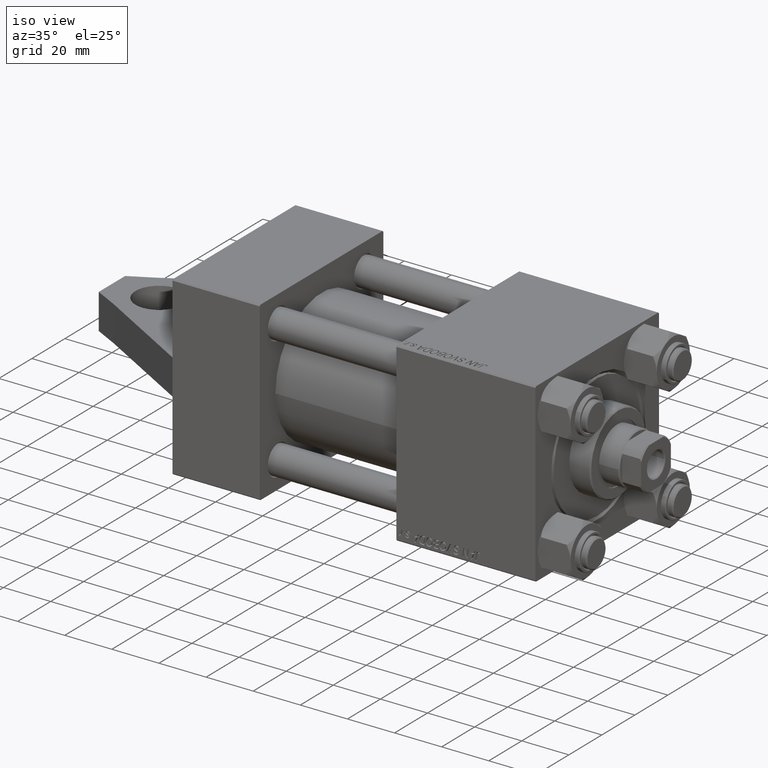
[diagram: clean part render]
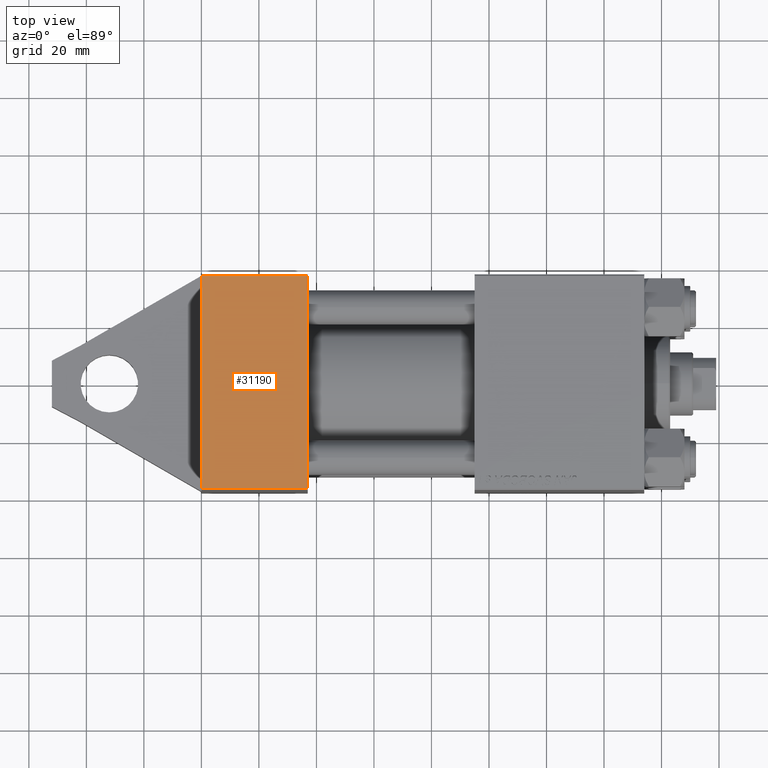
[diagram: tour spotlight — one face highlighted and labeled with its STEP entity id]
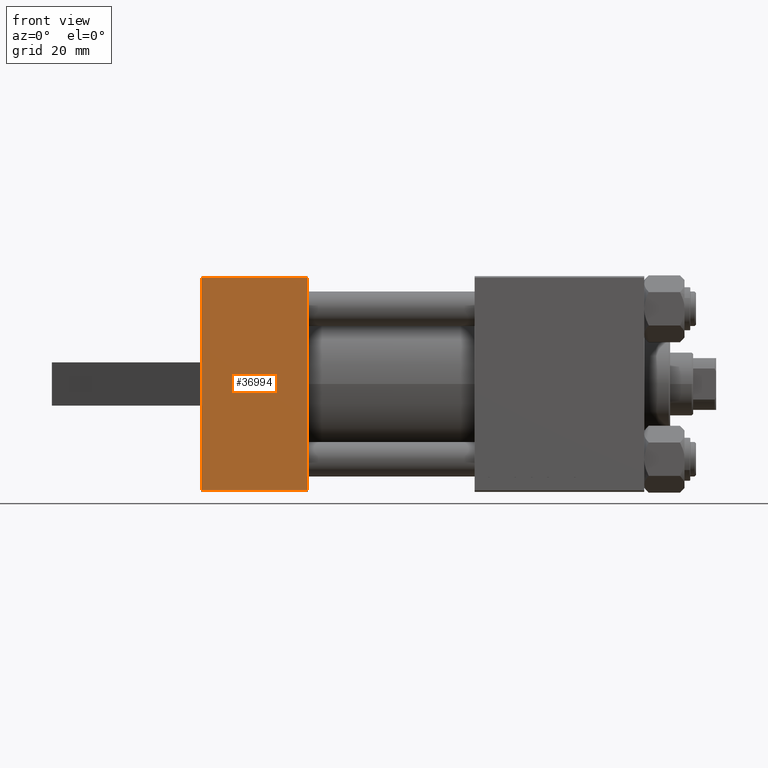
[diagram: tour spotlight — one face highlighted and labeled with its STEP entity id]
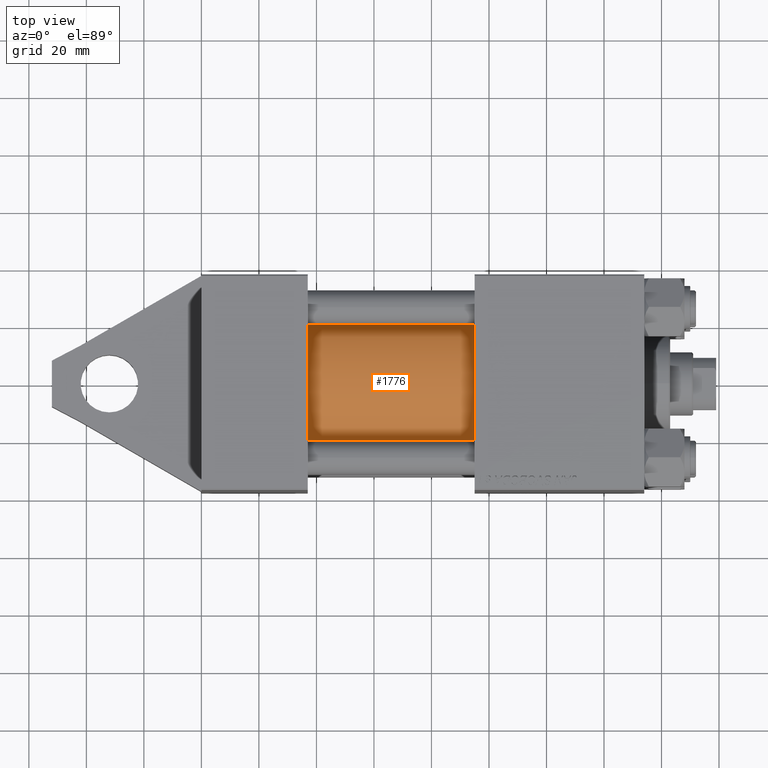
[diagram: tour spotlight — one face highlighted and labeled with its STEP entity id]
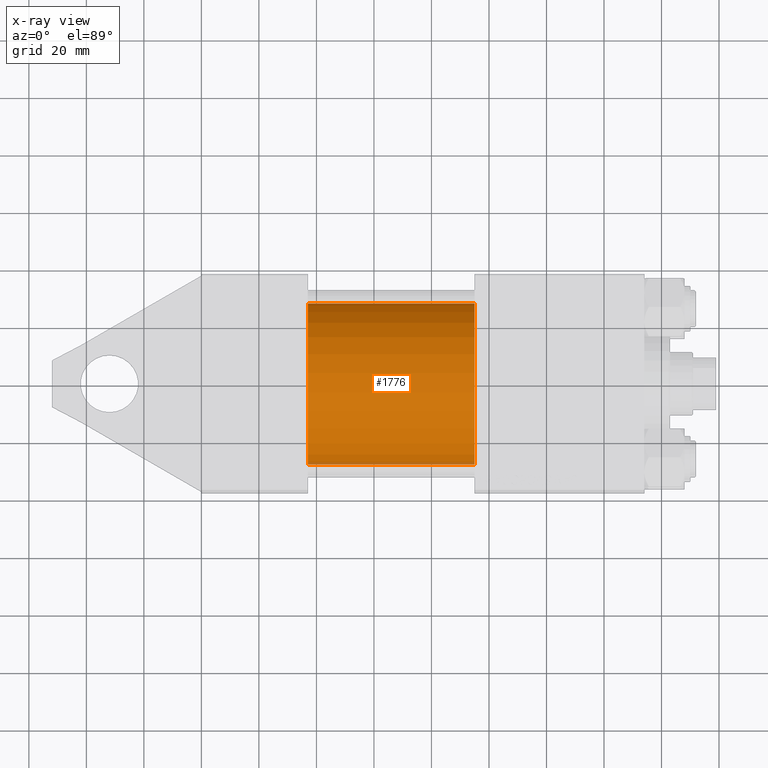
[diagram: x-ray of the same camera — body ghosted, this tour face saturated]
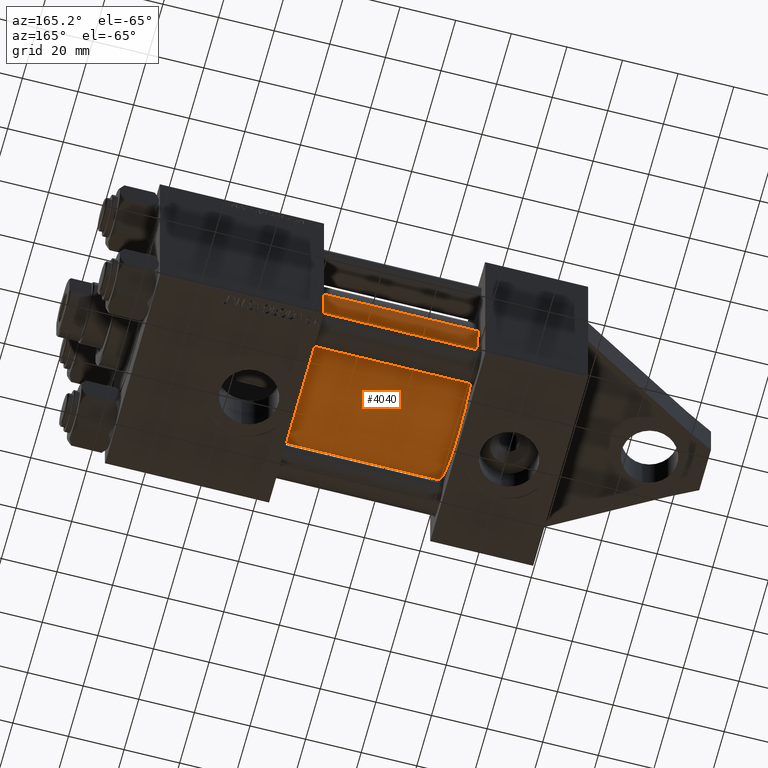
[diagram: tour spotlight — one face highlighted and labeled with its STEP entity id]
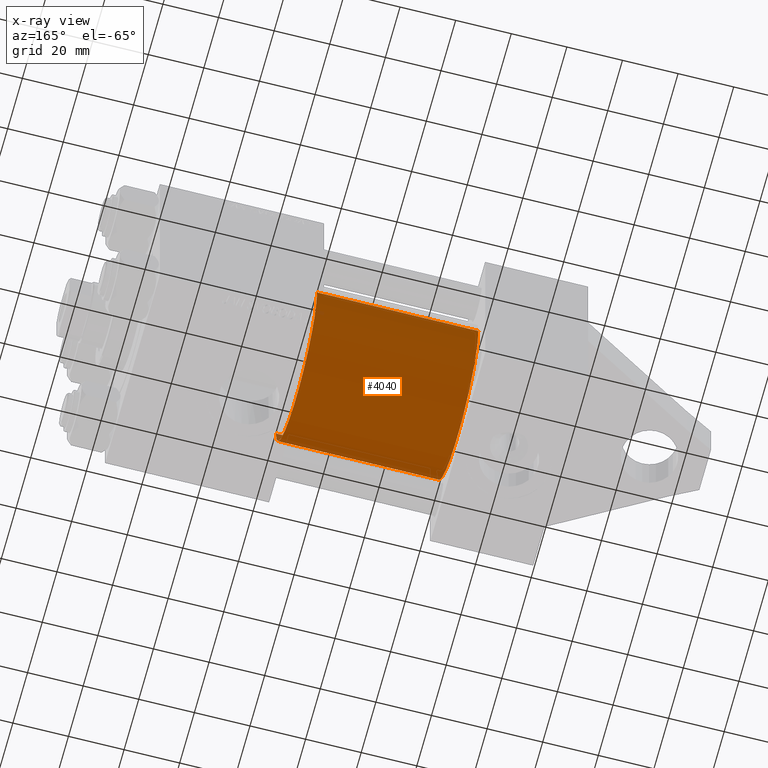
[diagram: x-ray of the same camera — body ghosted, this tour face saturated]
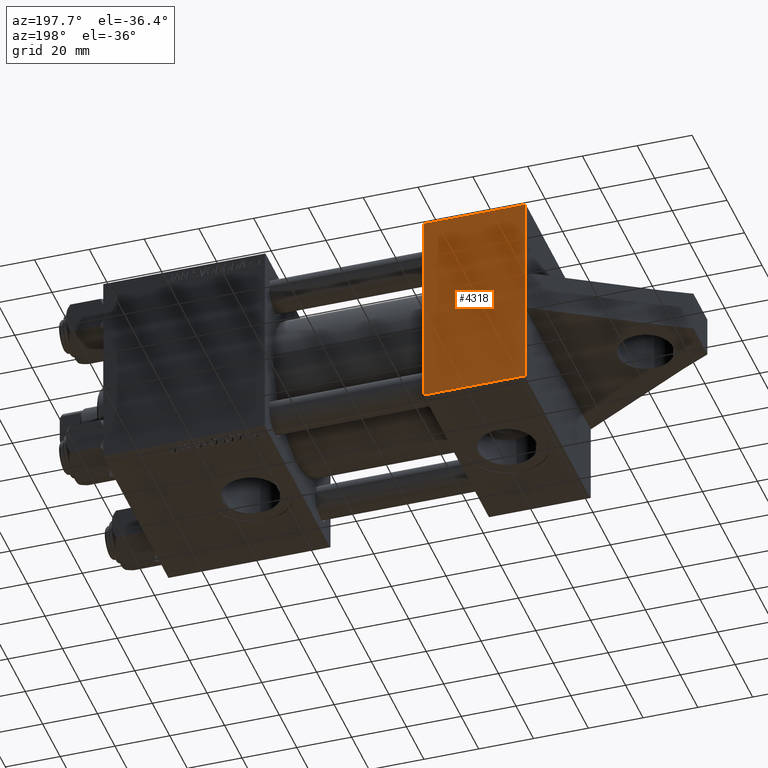
[diagram: tour spotlight — one face highlighted and labeled with its STEP entity id]
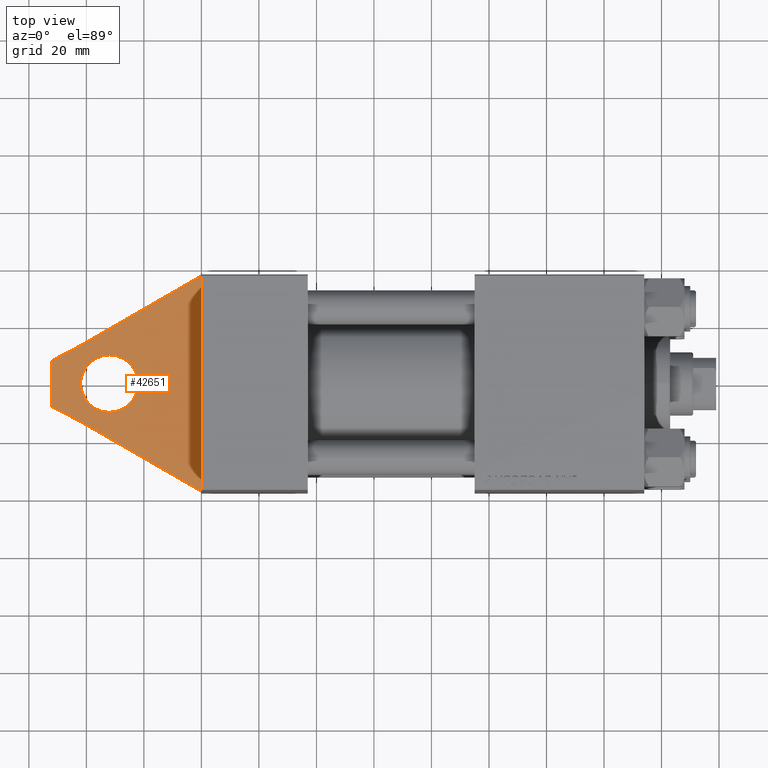
[diagram: tour spotlight — one face highlighted and labeled with its STEP entity id]
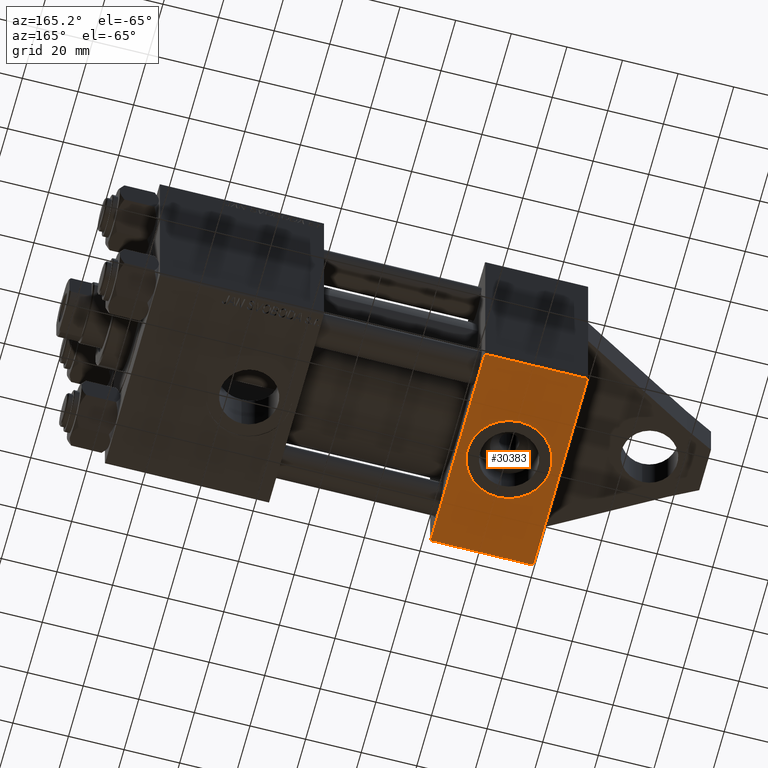
[diagram: tour spotlight — one face highlighted and labeled with its STEP entity id]
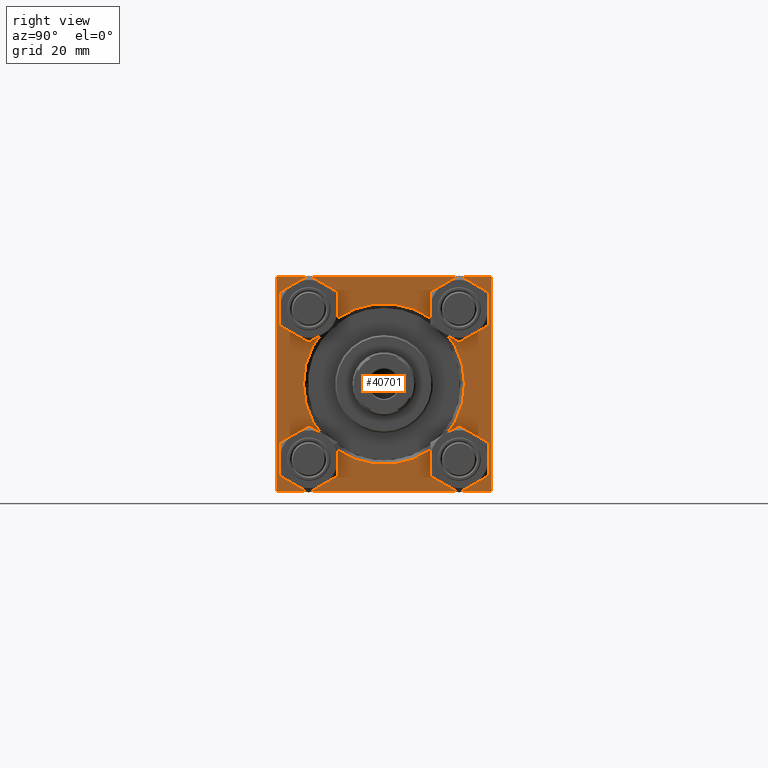
[diagram: tour spotlight — one face highlighted and labeled with its STEP entity id]
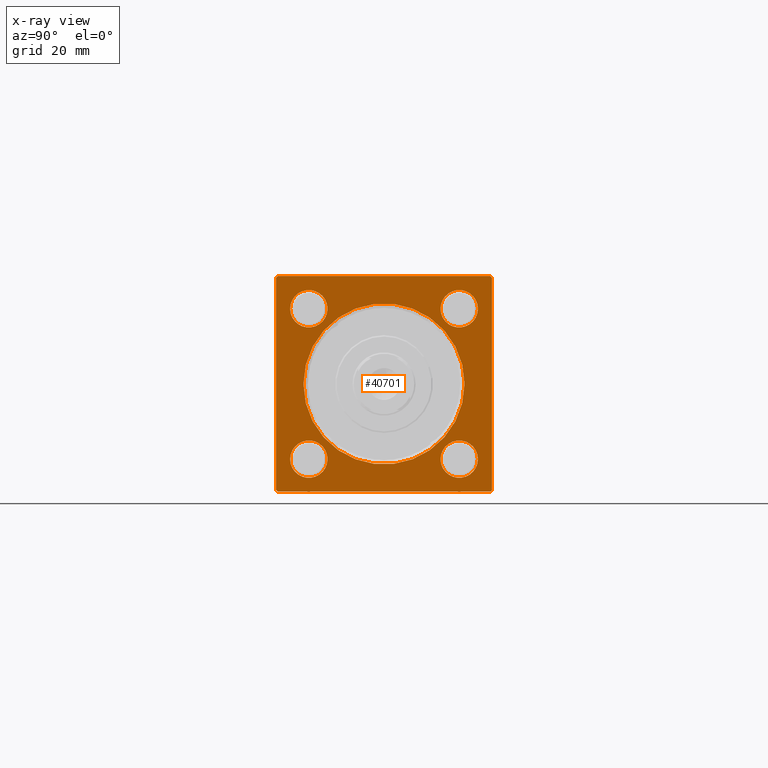
[diagram: x-ray of the same camera — body ghosted, this tour face saturated]
A machine part: a face-by-face anatomy tour. The part has 1079 B-rep faces; the first image is the clean iso view, then the 8 largest visible faces are spotlighted one at a time (largest first), each with its STEP entity span.

Face 1 — top view, entity #31190. In plain terms, the highlighted planar face has unit normal (-0, 0, 1).
Definition (entity closure, byte-faithful):
#1077 = ORIENTED_EDGE ( 'NONE', *, *, #16292, .F. ) ;
#1124 = CARTESIAN_POINT ( 'NONE',  ( 0.000000000000000000, 37.49999999999999289, 37.00000000000000000 ) ) ;
#7507 = FACE_OUTER_BOUND ( 'NONE', #40443, .T. ) ;
#8700 = CARTESIAN_POINT ( 'NONE',  ( 0.000000000000000000, 37.49999999999999289, 37.50000000000000000 ) ) ;
#10387 = DIRECTION ( 'NONE',  ( -1.000000000000000000, 0.000000000000000000, 0.000000000000000000 ) ) ;
#10771 = AXIS2_PLACEMENT_3D ( 'NONE', #25422, #14946, #11456 ) ;
#11229 = PLANE ( 'NONE',  #10771 ) ;
#11238 = VECTOR ( 'NONE', #40204, 1000.000000000000000 ) ;
#11456 = DIRECTION ( 'NONE',  ( 0.000000000000000000, -0.000000000000000000, 1.000000000000000000 ) ) ;
#11990 = CARTESIAN_POINT ( 'NONE',  ( 37.00000000000000000, 37.49999999999999289, 37.00000000000000000 ) ) ;
#13046 = ORIENTED_EDGE ( 'NONE', *, *, #33364, .T. ) ;
#13737 = EDGE_CURVE ( 'NONE', #21597, #35948, #25137, .T. ) ;
#14946 = DIRECTION ( 'NONE',  ( -0.000000000000000000, 1.000000000000000000, 0.000000000000000000 ) ) ;
#16140 = VERTEX_POINT ( 'NONE', #21284 ) ;
#16292 = EDGE_CURVE ( 'NONE', #21597, #37842, #30579, .T. ) ;
#18638 = EDGE_CURVE ( 'NONE', #35948, #16140, #44146, .T. ) ;
#21284 = CARTESIAN_POINT ( 'NONE',  ( 37.00000000000000000, 37.49999999999999289, -36.99999999999998579 ) ) ;
#21597 = VERTEX_POINT ( 'NONE', #1124 ) ;
#25137 = LINE ( 'NONE', #27936, #45276 ) ;
#25422 = CARTESIAN_POINT ( 'NONE',  ( 37.00000000000000000, 37.49999999999999289, 37.50000000000000000 ) ) ;
#26023 = CARTESIAN_POINT ( 'NONE',  ( 37.00000000000000000, 37.49999999999999289, 37.50000000000000000 ) ) ;
#27936 = CARTESIAN_POINT ( 'NONE',  ( 37.00000000000000000, 37.49999999999999289, 37.00000000000000000 ) ) ;
#29649 = ORIENTED_EDGE ( 'NONE', *, *, #18638, .T. ) ;
#30579 = LINE ( 'NONE', #8700, #39406 ) ;
#31190 = ADVANCED_FACE ( 'NONE', ( #7507 ), #11229, .T. ) ;
#33364 = EDGE_CURVE ( 'NONE', #16140, #37842, #35279, .T. ) ;
#35279 = LINE ( 'NONE', #45983, #36848 ) ;
#35839 = ORIENTED_EDGE ( 'NONE', *, *, #13737, .T. ) ;
#35841 = DIRECTION ( 'NONE',  ( 1.000000000000000000, 0.000000000000000000, 0.000000000000000000 ) ) ;
#35948 = VERTEX_POINT ( 'NONE', #11990 ) ;
#36848 = VECTOR ( 'NONE', #10387, 1000.000000000000000 ) ;
#37091 = DIRECTION ( 'NONE',  ( 0.000000000000000000, 0.000000000000000000, -1.000000000000000000 ) ) ;
#37842 = VERTEX_POINT ( 'NONE', #39962 ) ;
#39406 = VECTOR ( 'NONE', #37091, 1000.000000000000000 ) ;
#39962 = CARTESIAN_POINT ( 'NONE',  ( 0.000000000000000000, 37.49999999999999289, -36.99999999999998579 ) ) ;
#40204 = DIRECTION ( 'NONE',  ( 0.000000000000000000, 0.000000000000000000, -1.000000000000000000 ) ) ;
#40443 = EDGE_LOOP ( 'NONE', ( #29649, #13046, #1077, #35839 ) ) ;
#44146 = LINE ( 'NONE', #26023, #11238 ) ;
#45276 = VECTOR ( 'NONE', #35841, 1000.000000000000000 ) ;
#45983 = CARTESIAN_POINT ( 'NONE',  ( 37.00000000000000000, 37.49999999999999289, -36.99999999999998579 ) ) ;

Face 2 — front view, entity #36994. In plain terms, the highlighted planar face has unit normal (-0, 1, 0).
Definition (entity closure, byte-faithful):
#2776 = DIRECTION ( 'NONE',  ( 1.000000000000000000, 0.000000000000000000, 0.000000000000000000 ) ) ;
#5897 = VECTOR ( 'NONE', #2776, 1000.000000000000000 ) ;
#5996 = DIRECTION ( 'NONE',  ( -1.000000000000000000, 0.000000000000000000, 0.000000000000000000 ) ) ;
#6696 = CARTESIAN_POINT ( 'NONE',  ( 0.000000000000000000, 36.99999999999999289, 37.50000000000000000 ) ) ;
#9042 = DIRECTION ( 'NONE',  ( 0.000000000000000000, -1.000000000000000000, -9.251858538542971581E-17 ) ) ;
#9138 = EDGE_CURVE ( 'NONE', #19224, #28682, #19966, .T. ) ;
#10112 = CARTESIAN_POINT ( 'NONE',  ( 0.000000000000000000, -7.500000000000000000, 37.49999999999999289 ) ) ;
#10931 = VERTEX_POINT ( 'NONE', #14266 ) ;
#11923 = LINE ( 'NONE', #32877, #20145 ) ;
#12635 = EDGE_LOOP ( 'NONE', ( #22403, #43804, #38129, #23569, #16455, #44824 ) ) ;
#14266 = CARTESIAN_POINT ( 'NONE',  ( 0.000000000000000000, -37.00000000000000711, 37.49999999999999289 ) ) ;
#16305 = LINE ( 'NONE', #30725, #5897 ) ;
#16455 = ORIENTED_EDGE ( 'NONE', *, *, #30436, .F. ) ;
#17319 = EDGE_CURVE ( 'NONE', #28682, #37964, #11923, .T. ) ;
#17324 = DIRECTION ( 'NONE',  ( 0.000000000000000000, 1.000000000000000000, 0.000000000000000000 ) ) ;
#18930 = DIRECTION ( 'NONE',  ( 0.000000000000000000, 9.251858538542971581E-17, -1.000000000000000000 ) ) ;
#19115 = VECTOR ( 'NONE', #5996, 1000.000000000000000 ) ;
#19158 = PLANE ( 'NONE',  #26456 ) ;
#19224 = VERTEX_POINT ( 'NONE', #45186 ) ;
#19966 = LINE ( 'NONE', #34156, #19115 ) ;
#20145 = VECTOR ( 'NONE', #43105, 1000.000000000000000 ) ;
#20191 = VECTOR ( 'NONE', #17324, 1000.000000000000000 ) ;
#20658 = CARTESIAN_POINT ( 'NONE',  ( 0.000000000000000000, 37.49999999999999289, 37.50000000000000000 ) ) ;
#21519 = LINE ( 'NONE', #10112, #20191 ) ;
#22128 = EDGE_CURVE ( 'NONE', #31137, #37964, #21519, .T. ) ;
#22403 = ORIENTED_EDGE ( 'NONE', *, *, #17319, .T. ) ;
#22502 = EDGE_CURVE ( 'NONE', #31137, #10931, #23467, .T. ) ;
#22954 = VERTEX_POINT ( 'NONE', #39441 ) ;
#23114 = DIRECTION ( 'NONE',  ( 0.000000000000000000, 1.000000000000000000, 9.251858538542971581E-17 ) ) ;
#23467 = LINE ( 'NONE', #20658, #33577 ) ;
#23569 = ORIENTED_EDGE ( 'NONE', *, *, #44280, .T. ) ;
#25017 = CARTESIAN_POINT ( 'NONE',  ( 0.000000000000000000, 7.500000000000000000, 37.49999999999999289 ) ) ;
#26456 = AXIS2_PLACEMENT_3D ( 'NONE', #33353, #18930, #23114 ) ;
#28682 = VERTEX_POINT ( 'NONE', #6696 ) ;
#30436 = EDGE_CURVE ( 'NONE', #19224, #22954, #41143, .T. ) ;
#30725 = CARTESIAN_POINT ( 'NONE',  ( 37.00000000000000000, -37.00000000000000711, 37.49999999999999289 ) ) ;
#31137 = VERTEX_POINT ( 'NONE', #43098 ) ;
#32877 = CARTESIAN_POINT ( 'NONE',  ( 0.000000000000000000, 37.49999999999999289, 37.50000000000000000 ) ) ;
#33353 = CARTESIAN_POINT ( 'NONE',  ( 37.00000000000000000, 37.49999999999999289, 37.50000000000000000 ) ) ;
#33577 = VECTOR ( 'NONE', #41829, 1000.000000000000000 ) ;
#34156 = CARTESIAN_POINT ( 'NONE',  ( 0.000000000000000000, 36.99999999999999289, 37.50000000000000000 ) ) ;
#34559 = VECTOR ( 'NONE', #9042, 1000.000000000000000 ) ;
#36994 = ADVANCED_FACE ( 'NONE', ( #44039 ), #19158, .F. ) ;
#37430 = CARTESIAN_POINT ( 'NONE',  ( 37.00000000000000000, 37.49999999999999289, 37.50000000000000000 ) ) ;
#37964 = VERTEX_POINT ( 'NONE', #25017 ) ;
#38129 = ORIENTED_EDGE ( 'NONE', *, *, #22502, .T. ) ;
#39441 = CARTESIAN_POINT ( 'NONE',  ( 37.00000000000000000, -37.00000000000000711, 37.49999999999999289 ) ) ;
#41143 = LINE ( 'NONE', #37430, #34559 ) ;
#41829 = DIRECTION ( 'NONE',  ( 0.000000000000000000, -1.000000000000000000, -9.251858538542971581E-17 ) ) ;
#43098 = CARTESIAN_POINT ( 'NONE',  ( 0.000000000000000000, -7.500000000000000000, 37.49999999999999289 ) ) ;
#43105 = DIRECTION ( 'NONE',  ( 0.000000000000000000, -1.000000000000000000, -9.251858538542971581E-17 ) ) ;
#43804 = ORIENTED_EDGE ( 'NONE', *, *, #22128, .F. ) ;
#44039 = FACE_OUTER_BOUND ( 'NONE', #12635, .T. ) ;
#44280 = EDGE_CURVE ( 'NONE', #10931, #22954, #16305, .T. ) ;
#44824 = ORIENTED_EDGE ( 'NONE', *, *, #9138, .T. ) ;
#45186 = CARTESIAN_POINT ( 'NONE',  ( 37.00000000000000000, 36.99999999999999289, 37.50000000000000000 ) ) ;

Face 3 — top view, entity #1776. An x-ray twin of the same camera follows (body ghosted, this face saturated) — the face is partly hidden behind the body. In plain terms, the highlighted cylindrical surface (partial cylindrical patch) has radius 28 mm, axis along (-1, -0, 0).
Definition (entity closure, byte-faithful):
#60 = DIRECTION ( 'NONE',  ( -1.000000000000000000, -0.000000000000000000, -0.000000000000000000 ) ) ;
#763 = FACE_OUTER_BOUND ( 'NONE', #41252, .T. ) ;
#1013 = CARTESIAN_POINT ( 'NONE',  ( 95.00000000000000000, -2.602085213965210642E-15, 28.00000000000000000 ) ) ;
#1038 = DIRECTION ( 'NONE',  ( 1.000000000000000000, 0.000000000000000000, 0.000000000000000000 ) ) ;
#1642 = ORIENTED_EDGE ( 'NONE', *, *, #5258, .F. ) ;
#1776 = ADVANCED_FACE ( 'NONE', ( #763 ), #42640, .T. ) ;
#3582 = CARTESIAN_POINT ( 'NONE',  ( 37.00000000000000000, 8.269258236473776482E-16, -28.00000000000000000 ) ) ;
#5258 = EDGE_CURVE ( 'NONE', #40220, #21981, #42882, .T. ) ;
#6279 = CIRCLE ( 'NONE', #30185, 28.00000000000000000 ) ;
#10308 = VERTEX_POINT ( 'NONE', #14611 ) ;
#11155 = ORIENTED_EDGE ( 'NONE', *, *, #43958, .F. ) ;
#11977 = ORIENTED_EDGE ( 'NONE', *, *, #32787, .T. ) ;
#13008 = DIRECTION ( 'NONE',  ( 1.000000000000000000, -0.000000000000000000, 0.000000000000000000 ) ) ;
#13964 = EDGE_CURVE ( 'NONE', #40220, #26231, #45099, .T. ) ;
#14252 = DIRECTION ( 'NONE',  ( 0.000000000000000000, 0.000000000000000000, 1.000000000000000000 ) ) ;
#14611 = CARTESIAN_POINT ( 'NONE',  ( 37.00000000000000000, -2.602085213965210642E-15, 28.00000000000000000 ) ) ;
#19250 = VECTOR ( 'NONE', #40793, 1000.000000000000000 ) ;
#19423 = CARTESIAN_POINT ( 'NONE',  ( 95.00000000000000000, -2.602085213965210642E-15, 0.000000000000000000 ) ) ;
#20768 = VECTOR ( 'NONE', #44184, 1000.000000000000000 ) ;
#21981 = VERTEX_POINT ( 'NONE', #41092 ) ;
#22950 = CARTESIAN_POINT ( 'NONE',  ( 95.00000000000000000, 8.269258236473776482E-16, -28.00000000000000000 ) ) ;
#26231 = VERTEX_POINT ( 'NONE', #3582 ) ;
#26608 = LINE ( 'NONE', #1013, #19250 ) ;
#27434 = CARTESIAN_POINT ( 'NONE',  ( 95.00000000000000000, 8.269258236473776482E-16, -28.00000000000000000 ) ) ;
#27491 = DIRECTION ( 'NONE',  ( 0.000000000000000000, 0.000000000000000000, -1.000000000000000000 ) ) ;
#29428 = ORIENTED_EDGE ( 'NONE', *, *, #13964, .T. ) ;
#30185 = AXIS2_PLACEMENT_3D ( 'NONE', #37000, #13008, #33744 ) ;
#30902 = AXIS2_PLACEMENT_3D ( 'NONE', #31955, #60, #14252 ) ;
#31955 = CARTESIAN_POINT ( 'NONE',  ( 95.00000000000000000, -2.602085213965210642E-15, 0.000000000000000000 ) ) ;
#32787 = EDGE_CURVE ( 'NONE', #26231, #10308, #6279, .T. ) ;
#33744 = DIRECTION ( 'NONE',  ( 0.000000000000000000, 0.000000000000000000, 1.000000000000000000 ) ) ;
#34716 = AXIS2_PLACEMENT_3D ( 'NONE', #19423, #1038, #27491 ) ;
#37000 = CARTESIAN_POINT ( 'NONE',  ( 37.00000000000000000, -2.602085213965210642E-15, 0.000000000000000000 ) ) ;
#40220 = VERTEX_POINT ( 'NONE', #22950 ) ;
#40793 = DIRECTION ( 'NONE',  ( -1.000000000000000000, -0.000000000000000000, -0.000000000000000000 ) ) ;
#41092 = CARTESIAN_POINT ( 'NONE',  ( 95.00000000000000000, -2.602085213965210642E-15, 28.00000000000000000 ) ) ;
#41252 = EDGE_LOOP ( 'NONE', ( #1642, #29428, #11977, #11155 ) ) ;
#42640 = CYLINDRICAL_SURFACE ( 'NONE', #30902, 28.00000000000000000 ) ;
#42882 = CIRCLE ( 'NONE', #34716, 28.00000000000000000 ) ;
#43958 = EDGE_CURVE ( 'NONE', #21981, #10308, #26608, .T. ) ;
#44184 = DIRECTION ( 'NONE',  ( -1.000000000000000000, -0.000000000000000000, -0.000000000000000000 ) ) ;
#45099 = LINE ( 'NONE', #27434, #20768 ) ;

Face 4 — auxiliary view, entity #4040. An x-ray twin of the same camera follows (body ghosted, this face saturated) — the face is partly hidden behind the body. In plain terms, the highlighted cylindrical surface (partial cylindrical patch) has radius 28 mm, axis along (-1, -0, 0).
Definition (entity closure, byte-faithful):
#53 = ORIENTED_EDGE ( 'NONE', *, *, #32462, .T. ) ;
#1013 = CARTESIAN_POINT ( 'NONE',  ( 95.00000000000000000, -2.602085213965210642E-15, 28.00000000000000000 ) ) ;
#2595 = DIRECTION ( 'NONE',  ( 0.000000000000000000, 0.000000000000000000, 1.000000000000000000 ) ) ;
#3582 = CARTESIAN_POINT ( 'NONE',  ( 37.00000000000000000, 8.269258236473776482E-16, -28.00000000000000000 ) ) ;
#4040 = ADVANCED_FACE ( 'NONE', ( #20195 ), #20412, .T. ) ;
#6437 = DIRECTION ( 'NONE',  ( 0.000000000000000000, 0.000000000000000000, 1.000000000000000000 ) ) ;
#10157 = CARTESIAN_POINT ( 'NONE',  ( 95.00000000000000000, -2.602085213965210642E-15, 0.000000000000000000 ) ) ;
#10308 = VERTEX_POINT ( 'NONE', #14611 ) ;
#13964 = EDGE_CURVE ( 'NONE', #40220, #26231, #45099, .T. ) ;
#14207 = DIRECTION ( 'NONE',  ( 1.000000000000000000, 0.000000000000000000, 0.000000000000000000 ) ) ;
#14611 = CARTESIAN_POINT ( 'NONE',  ( 37.00000000000000000, -2.602085213965210642E-15, 28.00000000000000000 ) ) ;
#16019 = AXIS2_PLACEMENT_3D ( 'NONE', #44726, #34262, #2595 ) ;
#19250 = VECTOR ( 'NONE', #40793, 1000.000000000000000 ) ;
#20195 = FACE_OUTER_BOUND ( 'NONE', #32588, .T. ) ;
#20412 = CYLINDRICAL_SURFACE ( 'NONE', #38404, 28.00000000000000000 ) ;
#20768 = VECTOR ( 'NONE', #44184, 1000.000000000000000 ) ;
#21981 = VERTEX_POINT ( 'NONE', #41092 ) ;
#22950 = CARTESIAN_POINT ( 'NONE',  ( 95.00000000000000000, 8.269258236473776482E-16, -28.00000000000000000 ) ) ;
#23206 = ORIENTED_EDGE ( 'NONE', *, *, #43958, .T. ) ;
#23466 = CIRCLE ( 'NONE', #16019, 28.00000000000000000 ) ;
#24692 = CARTESIAN_POINT ( 'NONE',  ( 95.00000000000000000, -2.602085213965210642E-15, 0.000000000000000000 ) ) ;
#26149 = ORIENTED_EDGE ( 'NONE', *, *, #13964, .F. ) ;
#26231 = VERTEX_POINT ( 'NONE', #3582 ) ;
#26608 = LINE ( 'NONE', #1013, #19250 ) ;
#27434 = CARTESIAN_POINT ( 'NONE',  ( 95.00000000000000000, 8.269258236473776482E-16, -28.00000000000000000 ) ) ;
#30532 = ORIENTED_EDGE ( 'NONE', *, *, #32620, .F. ) ;
#32462 = EDGE_CURVE ( 'NONE', #10308, #26231, #23466, .T. ) ;
#32588 = EDGE_LOOP ( 'NONE', ( #26149, #30532, #23206, #53 ) ) ;
#32620 = EDGE_CURVE ( 'NONE', #21981, #40220, #40536, .T. ) ;
#34262 = DIRECTION ( 'NONE',  ( 1.000000000000000000, -0.000000000000000000, 0.000000000000000000 ) ) ;
#34603 = DIRECTION ( 'NONE',  ( -1.000000000000000000, -0.000000000000000000, -0.000000000000000000 ) ) ;
#34701 = DIRECTION ( 'NONE',  ( 0.000000000000000000, 0.000000000000000000, -1.000000000000000000 ) ) ;
#38404 = AXIS2_PLACEMENT_3D ( 'NONE', #10157, #34603, #6437 ) ;
#40220 = VERTEX_POINT ( 'NONE', #22950 ) ;
#40536 = CIRCLE ( 'NONE', #44987, 28.00000000000000000 ) ;
#40793 = DIRECTION ( 'NONE',  ( -1.000000000000000000, -0.000000000000000000, -0.000000000000000000 ) ) ;
#41092 = CARTESIAN_POINT ( 'NONE',  ( 95.00000000000000000, -2.602085213965210642E-15, 28.00000000000000000 ) ) ;
#43958 = EDGE_CURVE ( 'NONE', #21981, #10308, #26608, .T. ) ;
#44184 = DIRECTION ( 'NONE',  ( -1.000000000000000000, -0.000000000000000000, -0.000000000000000000 ) ) ;
#44726 = CARTESIAN_POINT ( 'NONE',  ( 37.00000000000000000, -2.602085213965210642E-15, 0.000000000000000000 ) ) ;
#44987 = AXIS2_PLACEMENT_3D ( 'NONE', #24692, #14207, #34701 ) ;
#45099 = LINE ( 'NONE', #27434, #20768 ) ;

Face 5 — auxiliary view, entity #4318. In plain terms, the highlighted planar face has unit normal (-0, 1, 0).
Definition (entity closure, byte-faithful):
#46 = DIRECTION ( 'NONE',  ( 0.000000000000000000, 1.000000000000000000, 9.251858538542972814E-17 ) ) ;
#292 = LINE ( 'NONE', #32420, #35055 ) ;
#2719 = AXIS2_PLACEMENT_3D ( 'NONE', #31940, #38910, #46 ) ;
#3806 = CARTESIAN_POINT ( 'NONE',  ( 37.00000000000000000, 36.99999999999997868, -37.50000000000000000 ) ) ;
#4318 = ADVANCED_FACE ( 'NONE', ( #42404 ), #24719, .T. ) ;
#4477 = EDGE_CURVE ( 'NONE', #44176, #22516, #12589, .T. ) ;
#4494 = DIRECTION ( 'NONE',  ( 0.000000000000000000, 1.000000000000000000, 0.000000000000000000 ) ) ;
#6084 = ORIENTED_EDGE ( 'NONE', *, *, #34245, .F. ) ;
#6276 = VERTEX_POINT ( 'NONE', #27096 ) ;
#10451 = EDGE_CURVE ( 'NONE', #6276, #22516, #16905, .T. ) ;
#12589 = LINE ( 'NONE', #19358, #28748 ) ;
#14322 = DIRECTION ( 'NONE',  ( 0.000000000000000000, -1.000000000000000000, -9.251858538542972814E-17 ) ) ;
#14587 = CARTESIAN_POINT ( 'NONE',  ( 37.00000000000000000, 36.99999999999997868, -37.50000000000000000 ) ) ;
#16905 = LINE ( 'NONE', #24805, #29569 ) ;
#17184 = VECTOR ( 'NONE', #18024, 1000.000000000000000 ) ;
#17337 = CARTESIAN_POINT ( 'NONE',  ( 0.000000000000000000, 36.99999999999997868, -37.50000000000000000 ) ) ;
#17626 = EDGE_LOOP ( 'NONE', ( #6084, #36300, #21571, #19340, #23593, #27882 ) ) ;
#18024 = DIRECTION ( 'NONE',  ( 0.000000000000000000, -1.000000000000000000, -9.251858538542972814E-17 ) ) ;
#18253 = LINE ( 'NONE', #21749, #17184 ) ;
#18275 = VERTEX_POINT ( 'NONE', #22807 ) ;
#18882 = CARTESIAN_POINT ( 'NONE',  ( 37.00000000000000000, -37.00000000000002132, -37.50000000000000711 ) ) ;
#19340 = ORIENTED_EDGE ( 'NONE', *, *, #4477, .T. ) ;
#19358 = CARTESIAN_POINT ( 'NONE',  ( 0.000000000000000000, -37.00000000000002132, -37.50000000000000711 ) ) ;
#21571 = ORIENTED_EDGE ( 'NONE', *, *, #22025, .T. ) ;
#21749 = CARTESIAN_POINT ( 'NONE',  ( 37.00000000000000000, 37.49999999999999289, -37.50000000000000000 ) ) ;
#22025 = EDGE_CURVE ( 'NONE', #33907, #44176, #18253, .T. ) ;
#22046 = DIRECTION ( 'NONE',  ( 1.000000000000000000, 0.000000000000000000, 0.000000000000000000 ) ) ;
#22312 = LINE ( 'NONE', #36496, #31560 ) ;
#22516 = VERTEX_POINT ( 'NONE', #34847 ) ;
#22649 = EDGE_CURVE ( 'NONE', #40140, #33907, #46007, .T. ) ;
#22807 = CARTESIAN_POINT ( 'NONE',  ( 0.000000000000000000, 7.500000000000000000, -37.50000000000000711 ) ) ;
#23593 = ORIENTED_EDGE ( 'NONE', *, *, #10451, .F. ) ;
#23747 = EDGE_CURVE ( 'NONE', #6276, #18275, #292, .T. ) ;
#24719 = PLANE ( 'NONE',  #2719 ) ;
#24805 = CARTESIAN_POINT ( 'NONE',  ( 0.000000000000000000, 37.49999999999999289, -37.50000000000000000 ) ) ;
#27096 = CARTESIAN_POINT ( 'NONE',  ( 0.000000000000000000, -7.500000000000000000, -37.50000000000000711 ) ) ;
#27882 = ORIENTED_EDGE ( 'NONE', *, *, #23747, .T. ) ;
#28748 = VECTOR ( 'NONE', #41441, 1000.000000000000000 ) ;
#29569 = VECTOR ( 'NONE', #14322, 1000.000000000000000 ) ;
#31560 = VECTOR ( 'NONE', #36717, 1000.000000000000000 ) ;
#31940 = CARTESIAN_POINT ( 'NONE',  ( 37.00000000000000000, 37.49999999999999289, -37.50000000000000000 ) ) ;
#32420 = CARTESIAN_POINT ( 'NONE',  ( 0.000000000000000000, -7.500000000000000000, -37.50000000000000711 ) ) ;
#32816 = VECTOR ( 'NONE', #22046, 1000.000000000000000 ) ;
#33907 = VERTEX_POINT ( 'NONE', #3806 ) ;
#34245 = EDGE_CURVE ( 'NONE', #40140, #18275, #22312, .T. ) ;
#34847 = CARTESIAN_POINT ( 'NONE',  ( 0.000000000000000000, -37.00000000000002132, -37.50000000000000711 ) ) ;
#35055 = VECTOR ( 'NONE', #4494, 1000.000000000000000 ) ;
#36300 = ORIENTED_EDGE ( 'NONE', *, *, #22649, .T. ) ;
#36496 = CARTESIAN_POINT ( 'NONE',  ( 0.000000000000000000, 37.49999999999999289, -37.50000000000000000 ) ) ;
#36717 = DIRECTION ( 'NONE',  ( 0.000000000000000000, -1.000000000000000000, -9.251858538542972814E-17 ) ) ;
#38910 = DIRECTION ( 'NONE',  ( 0.000000000000000000, 9.251858538542972814E-17, -1.000000000000000000 ) ) ;
#40140 = VERTEX_POINT ( 'NONE', #17337 ) ;
#41441 = DIRECTION ( 'NONE',  ( -1.000000000000000000, 0.000000000000000000, 0.000000000000000000 ) ) ;
#42404 = FACE_OUTER_BOUND ( 'NONE', #17626, .T. ) ;
#44176 = VERTEX_POINT ( 'NONE', #18882 ) ;
#46007 = LINE ( 'NONE', #14587, #32816 ) ;

Face 6 — top view, entity #42651. In plain terms, the highlighted planar face has unit normal (-0, 0, 1).
Definition (entity closure, byte-faithful):
#3 = ORIENTED_EDGE ( 'NONE', *, *, #24056, .T. ) ;
#247 = CARTESIAN_POINT ( 'NONE',  ( -32.00000000000000000, 7.500000000000000000, 0.000000000000000000 ) ) ;
#1753 = CARTESIAN_POINT ( 'NONE',  ( -42.00000000000000000, 7.500000000000000000, -13.25128869403544485 ) ) ;
#2203 = CARTESIAN_POINT ( 'NONE',  ( -52.00000000000000711, 7.500000000000000000, 8.000000000000000000 ) ) ;
#2652 = EDGE_CURVE ( 'NONE', #18238, #37083, #44279, .T. ) ;
#3027 = CARTESIAN_POINT ( 'NONE',  ( 0.000000000000000000, 7.500000000000000000, 0.000000000000000000 ) ) ;
#5568 = DIRECTION ( 'NONE',  ( -0.8853509411893986103, -0.000000000000000000, 0.4649233387721528055 ) ) ;
#5635 = CARTESIAN_POINT ( 'NONE',  ( -42.00000000000000000, 7.500000000000000000, 13.25128869403544485 ) ) ;
#6153 = LINE ( 'NONE', #2203, #31397 ) ;
#6546 = DIRECTION ( 'NONE',  ( 0.000000000000000000, 0.000000000000000000, 1.000000000000000000 ) ) ;
#6797 = LINE ( 'NONE', #7726, #45278 ) ;
#7504 = VERTEX_POINT ( 'NONE', #5635 ) ;
#7726 = CARTESIAN_POINT ( 'NONE',  ( -52.00000000000000711, 7.500000000000000000, -8.000000000000000000 ) ) ;
#7806 = DIRECTION ( 'NONE',  ( 0.000000000000000000, 0.000000000000000000, -1.000000000000000000 ) ) ;
#9620 = ORIENTED_EDGE ( 'NONE', *, *, #18019, .T. ) ;
#9644 = VECTOR ( 'NONE', #5568, 1000.000000000000227 ) ;
#13807 = ORIENTED_EDGE ( 'NONE', *, *, #44971, .T. ) ;
#14707 = EDGE_CURVE ( 'NONE', #40289, #21075, #27439, .T. ) ;
#16286 = CARTESIAN_POINT ( 'NONE',  ( -32.00000000000000000, 7.500000000000000000, 10.00000000000000000 ) ) ;
#16773 = PLANE ( 'NONE',  #31856 ) ;
#16953 = VERTEX_POINT ( 'NONE', #45495 ) ;
#17585 = DIRECTION ( 'NONE',  ( 0.000000000000000000, 0.000000000000000000, 1.000000000000000000 ) ) ;
#17902 = VECTOR ( 'NONE', #7806, 1000.000000000000000 ) ;
#18019 = EDGE_CURVE ( 'NONE', #37964, #18275, #22009, .T. ) ;
#18238 = VERTEX_POINT ( 'NONE', #16286 ) ;
#18275 = VERTEX_POINT ( 'NONE', #22807 ) ;
#18916 = EDGE_CURVE ( 'NONE', #18275, #40289, #22698, .T. ) ;
#19089 = DIRECTION ( 'NONE',  ( 0.8660254037844363761, 0.000000000000000000, 0.5000000000000041078 ) ) ;
#19774 = LINE ( 'NONE', #33968, #33644 ) ;
#19819 = ORIENTED_EDGE ( 'NONE', *, *, #32639, .F. ) ;
#21075 = VERTEX_POINT ( 'NONE', #29639 ) ;
#21224 = DIRECTION ( 'NONE',  ( 0.000000000000000000, 0.000000000000000000, 1.000000000000000000 ) ) ;
#21668 = VECTOR ( 'NONE', #25735, 1000.000000000000114 ) ;
#22009 = LINE ( 'NONE', #25496, #17902 ) ;
#22422 = CARTESIAN_POINT ( 'NONE',  ( -32.00000000000000000, 7.500000000000000000, -10.00000000000000000 ) ) ;
#22698 = LINE ( 'NONE', #36890, #21668 ) ;
#22807 = CARTESIAN_POINT ( 'NONE',  ( 0.000000000000000000, 7.500000000000000000, -37.50000000000000711 ) ) ;
#24056 = EDGE_CURVE ( 'NONE', #7504, #37964, #19774, .T. ) ;
#24408 = EDGE_CURVE ( 'NONE', #16953, #7504, #6153, .T. ) ;
#24572 = DIRECTION ( 'NONE',  ( 0.000000000000000000, 1.000000000000000000, 0.000000000000000000 ) ) ;
#25017 = CARTESIAN_POINT ( 'NONE',  ( 0.000000000000000000, 7.500000000000000000, 37.49999999999999289 ) ) ;
#25496 = CARTESIAN_POINT ( 'NONE',  ( 0.000000000000000000, 7.500000000000000000, 37.49999999999999289 ) ) ;
#25735 = DIRECTION ( 'NONE',  ( -0.8660254037844362651, -0.000000000000000000, 0.5000000000000042188 ) ) ;
#25926 = ORIENTED_EDGE ( 'NONE', *, *, #14707, .T. ) ;
#26429 = CIRCLE ( 'NONE', #43519, 10.00000000000000000 ) ;
#27208 = CARTESIAN_POINT ( 'NONE',  ( -52.00000000000000711, 7.500000000000000000, -8.000000000000000000 ) ) ;
#27439 = LINE ( 'NONE', #27208, #9644 ) ;
#27933 = DIRECTION ( 'NONE',  ( 0.000000000000000000, -0.000000000000000000, 1.000000000000000000 ) ) ;
#29639 = CARTESIAN_POINT ( 'NONE',  ( -52.00000000000000711, 7.500000000000000000, -8.000000000000000000 ) ) ;
#31397 = VECTOR ( 'NONE', #34540, 1000.000000000000227 ) ;
#31856 = AXIS2_PLACEMENT_3D ( 'NONE', #3027, #38173, #27933 ) ;
#32518 = ORIENTED_EDGE ( 'NONE', *, *, #24408, .T. ) ;
#32639 = EDGE_CURVE ( 'NONE', #37083, #18238, #26429, .T. ) ;
#33644 = VECTOR ( 'NONE', #19089, 1000.000000000000000 ) ;
#33968 = CARTESIAN_POINT ( 'NONE',  ( -42.00000000000000000, 7.500000000000000000, 13.25128869403544485 ) ) ;
#34464 = FACE_OUTER_BOUND ( 'NONE', #42958, .T. ) ;
#34540 = DIRECTION ( 'NONE',  ( 0.8853509411893986103, 0.000000000000000000, 0.4649233387721528055 ) ) ;
#35144 = FACE_BOUND ( 'NONE', #40164, .T. ) ;
#35270 = CARTESIAN_POINT ( 'NONE',  ( -32.00000000000000000, 7.500000000000000000, 0.000000000000000000 ) ) ;
#36890 = CARTESIAN_POINT ( 'NONE',  ( -42.00000000000000000, 7.500000000000000000, -13.25128869403544485 ) ) ;
#37083 = VERTEX_POINT ( 'NONE', #22422 ) ;
#37964 = VERTEX_POINT ( 'NONE', #25017 ) ;
#38173 = DIRECTION ( 'NONE',  ( -0.000000000000000000, 1.000000000000000000, 0.000000000000000000 ) ) ;
#40164 = EDGE_LOOP ( 'NONE', ( #42355, #19819 ) ) ;
#40289 = VERTEX_POINT ( 'NONE', #1753 ) ;
#42355 = ORIENTED_EDGE ( 'NONE', *, *, #2652, .F. ) ;
#42651 = ADVANCED_FACE ( 'NONE', ( #35144, #34464 ), #16773, .T. ) ;
#42958 = EDGE_LOOP ( 'NONE', ( #32518, #3, #9620, #45841, #25926, #13807 ) ) ;
#43519 = AXIS2_PLACEMENT_3D ( 'NONE', #247, #45402, #6546 ) ;
#44279 = CIRCLE ( 'NONE', #45015, 10.00000000000000000 ) ;
#44971 = EDGE_CURVE ( 'NONE', #21075, #16953, #6797, .T. ) ;
#45015 = AXIS2_PLACEMENT_3D ( 'NONE', #35270, #24572, #17585 ) ;
#45278 = VECTOR ( 'NONE', #21224, 1000.000000000000000 ) ;
#45402 = DIRECTION ( 'NONE',  ( 0.000000000000000000, 1.000000000000000000, 0.000000000000000000 ) ) ;
#45495 = CARTESIAN_POINT ( 'NONE',  ( -52.00000000000000711, 7.500000000000000000, 8.000000000000000000 ) ) ;
#45841 = ORIENTED_EDGE ( 'NONE', *, *, #18916, .T. ) ;

Face 7 — auxiliary view, entity #30383. In plain terms, the highlighted planar face has unit normal (0, -0, 1).
Definition (entity closure, byte-faithful):
#903 = CARTESIAN_POINT ( 'NONE',  ( 37.00000000000000000, -37.50000000000000711, 37.49999999999999289 ) ) ;
#1437 = EDGE_LOOP ( 'NONE', ( #6875, #41539, #39431, #39277 ) ) ;
#4610 = CARTESIAN_POINT ( 'NONE',  ( 37.00000000000000000, -37.50000000000000711, 37.49999999999999289 ) ) ;
#5020 = VECTOR ( 'NONE', #10044, 1000.000000000000000 ) ;
#5088 = FACE_BOUND ( 'NONE', #7039, .T. ) ;
#5739 = LINE ( 'NONE', #44356, #10035 ) ;
#5792 = VECTOR ( 'NONE', #18807, 1000.000000000000000 ) ;
#6567 = CARTESIAN_POINT ( 'NONE',  ( 18.50000000000000000, -37.50000000000000711, -3.469446951953614978E-15 ) ) ;
#6875 = ORIENTED_EDGE ( 'NONE', *, *, #37096, .T. ) ;
#7039 = EDGE_LOOP ( 'NONE', ( #9851, #9626 ) ) ;
#7663 = EDGE_CURVE ( 'NONE', #46052, #37731, #13975, .T. ) ;
#7866 = LINE ( 'NONE', #4610, #5792 ) ;
#8014 = AXIS2_PLACEMENT_3D ( 'NONE', #6567, #41933, #41490 ) ;
#9546 = EDGE_CURVE ( 'NONE', #34282, #15652, #45411, .T. ) ;
#9626 = ORIENTED_EDGE ( 'NONE', *, *, #40647, .F. ) ;
#9851 = ORIENTED_EDGE ( 'NONE', *, *, #7663, .F. ) ;
#10035 = VECTOR ( 'NONE', #19704, 1000.000000000000000 ) ;
#10044 = DIRECTION ( 'NONE',  ( -1.000000000000000000, 0.000000000000000000, 0.000000000000000000 ) ) ;
#10338 = EDGE_CURVE ( 'NONE', #34282, #44540, #7866, .T. ) ;
#11158 = DIRECTION ( 'NONE',  ( -0.000000000000000000, 1.000000000000000000, 9.251858538542971581E-17 ) ) ;
#11837 = CARTESIAN_POINT ( 'NONE',  ( 37.00000000000000000, -37.50000000000000000, -37.00000000000003553 ) ) ;
#11842 = DIRECTION ( 'NONE',  ( 0.000000000000000000, -9.251858538542971581E-17, 1.000000000000000000 ) ) ;
#13975 = CIRCLE ( 'NONE', #19844, 15.00000000000000178 ) ;
#15652 = VERTEX_POINT ( 'NONE', #30679 ) ;
#18807 = DIRECTION ( 'NONE',  ( 0.000000000000000000, 9.251858538542971581E-17, -1.000000000000000000 ) ) ;
#19286 = FACE_OUTER_BOUND ( 'NONE', #1437, .T. ) ;
#19704 = DIRECTION ( 'NONE',  ( 1.000000000000000000, 0.000000000000000000, 0.000000000000000000 ) ) ;
#19844 = AXIS2_PLACEMENT_3D ( 'NONE', #24223, #20294, #37973 ) ;
#20294 = DIRECTION ( 'NONE',  ( 0.000000000000000000, -1.000000000000000000, -8.673617379884036705E-17 ) ) ;
#22894 = VERTEX_POINT ( 'NONE', #45717 ) ;
#24223 = CARTESIAN_POINT ( 'NONE',  ( 18.50000000000000000, -37.50000000000000711, -3.469446951953614978E-15 ) ) ;
#25084 = CIRCLE ( 'NONE', #8014, 15.00000000000000178 ) ;
#26252 = CARTESIAN_POINT ( 'NONE',  ( 37.00000000000000000, -37.50000000000000711, 36.99999999999999289 ) ) ;
#30383 = ADVANCED_FACE ( 'NONE', ( #5088, #19286 ), #43709, .F. ) ;
#30679 = CARTESIAN_POINT ( 'NONE',  ( 0.000000000000000000, -37.50000000000000711, 36.99999999999999289 ) ) ;
#31467 = EDGE_CURVE ( 'NONE', #22894, #44540, #5739, .T. ) ;
#33198 = CARTESIAN_POINT ( 'NONE',  ( 18.50000000000000000, -37.50000000000000711, -15.00000000000000533 ) ) ;
#34282 = VERTEX_POINT ( 'NONE', #26252 ) ;
#35318 = CARTESIAN_POINT ( 'NONE',  ( 18.50000000000000355, -37.50000000000000711, 14.99999999999999822 ) ) ;
#37096 = EDGE_CURVE ( 'NONE', #15652, #22894, #45408, .T. ) ;
#37731 = VERTEX_POINT ( 'NONE', #35318 ) ;
#37973 = DIRECTION ( 'NONE',  ( 0.000000000000000000, 0.000000000000000000, -1.000000000000000000 ) ) ;
#37984 = DIRECTION ( 'NONE',  ( 0.000000000000000000, 9.251858538542971581E-17, -1.000000000000000000 ) ) ;
#39277 = ORIENTED_EDGE ( 'NONE', *, *, #9546, .T. ) ;
#39431 = ORIENTED_EDGE ( 'NONE', *, *, #10338, .F. ) ;
#40647 = EDGE_CURVE ( 'NONE', #37731, #46052, #25084, .T. ) ;
#41276 = AXIS2_PLACEMENT_3D ( 'NONE', #903, #11158, #11842 ) ;
#41490 = DIRECTION ( 'NONE',  ( 0.000000000000000000, 0.000000000000000000, -1.000000000000000000 ) ) ;
#41539 = ORIENTED_EDGE ( 'NONE', *, *, #31467, .T. ) ;
#41922 = CARTESIAN_POINT ( 'NONE',  ( 37.00000000000000000, -37.50000000000000711, 36.99999999999999289 ) ) ;
#41933 = DIRECTION ( 'NONE',  ( 0.000000000000000000, -1.000000000000000000, -8.673617379884036705E-17 ) ) ;
#43709 = PLANE ( 'NONE',  #41276 ) ;
#44356 = CARTESIAN_POINT ( 'NONE',  ( 37.00000000000000000, -37.50000000000000000, -37.00000000000003553 ) ) ;
#44540 = VERTEX_POINT ( 'NONE', #11837 ) ;
#44957 = CARTESIAN_POINT ( 'NONE',  ( 0.000000000000000000, -37.50000000000000711, 37.49999999999999289 ) ) ;
#45408 = LINE ( 'NONE', #44957, #45802 ) ;
#45411 = LINE ( 'NONE', #41922, #5020 ) ;
#45717 = CARTESIAN_POINT ( 'NONE',  ( 0.000000000000000000, -37.50000000000000000, -37.00000000000003553 ) ) ;
#45802 = VECTOR ( 'NONE', #37984, 1000.000000000000000 ) ;
#46052 = VERTEX_POINT ( 'NONE', #33198 ) ;

Face 8 — right view, entity #40701. An x-ray twin of the same camera follows (body ghosted, this face saturated) — the face is partly hidden behind the body. In plain terms, the highlighted planar face has unit normal (-1, -0, 0).
Definition (entity closure, byte-faithful):
#361 = DIRECTION ( 'NONE',  ( -0.000000000000000000, -0.7071067811865474617, -0.7071067811865474617 ) ) ;
#621 = VERTEX_POINT ( 'NONE', #44401 ) ;
#659 = DIRECTION ( 'NONE',  ( -1.000000000000000000, -0.000000000000000000, 0.000000000000000000 ) ) ;
#1326 = VECTOR ( 'NONE', #10614, 1000.000000000000000 ) ;
#1998 = ORIENTED_EDGE ( 'NONE', *, *, #21220, .T. ) ;
#2029 = DIRECTION ( 'NONE',  ( -1.000000000000000000, -0.000000000000000000, 0.000000000000000000 ) ) ;
#2062 = VECTOR ( 'NONE', #7821, 1000.000000000000114 ) ;
#2098 = DIRECTION ( 'NONE',  ( 0.000000000000000000, 0.000000000000000000, 1.000000000000000000 ) ) ;
#2166 = FACE_BOUND ( 'NONE', #39657, .T. ) ;
#2500 = ORIENTED_EDGE ( 'NONE', *, *, #24934, .T. ) ;
#2917 = AXIS2_PLACEMENT_3D ( 'NONE', #7381, #39261, #39718 ) ;
#3073 = VERTEX_POINT ( 'NONE', #27450 ) ;
#3390 = CARTESIAN_POINT ( 'NONE',  ( 154.0000000000000000, -37.50000000000000000, 37.49999999999997868 ) ) ;
#3645 = ORIENTED_EDGE ( 'NONE', *, *, #44205, .T. ) ;
#4107 = CARTESIAN_POINT ( 'NONE',  ( 154.0000000000000000, 26.14999999999999858, 19.64999999999999858 ) ) ;
#4781 = CARTESIAN_POINT ( 'NONE',  ( 154.0000000000000000, -37.50000000000000000, 36.99999999999995026 ) ) ;
#5665 = CARTESIAN_POINT ( 'NONE',  ( 154.0000000000000000, 37.50000000000000000, -36.99999999999999289 ) ) ;
#5735 = VERTEX_POINT ( 'NONE', #45335 ) ;
#6844 = CARTESIAN_POINT ( 'NONE',  ( 154.0000000000000000, 37.50000000000000000, -37.50000000000000000 ) ) ;
#7029 = ORIENTED_EDGE ( 'NONE', *, *, #20021, .F. ) ;
#7143 = VECTOR ( 'NONE', #44991, 1000.000000000000000 ) ;
#7381 = CARTESIAN_POINT ( 'NONE',  ( 154.0000000000000000, 26.14999999999999858, -26.15000000000000213 ) ) ;
#7502 = EDGE_CURVE ( 'NONE', #35480, #621, #31722, .T. ) ;
#7821 = DIRECTION ( 'NONE',  ( 0.000000000000000000, -0.7071067811865474617, 0.7071067811865474617 ) ) ;
#8210 = DIRECTION ( 'NONE',  ( 0.000000000000000000, 0.000000000000000000, 1.000000000000000000 ) ) ;
#8246 = DIRECTION ( 'NONE',  ( -0.000000000000000000, 0.7071067811865425767, 0.7071067811865525687 ) ) ;
#8421 = EDGE_LOOP ( 'NONE', ( #26562, #14244, #7029, #28121, #21513, #20151, #9037, #28996 ) ) ;
#8553 = DIRECTION ( 'NONE',  ( 0.000000000000000000, 0.000000000000000000, 1.000000000000000000 ) ) ;
#8844 = CIRCLE ( 'NONE', #25190, 6.500000000000002665 ) ;
#9037 = ORIENTED_EDGE ( 'NONE', *, *, #26889, .T. ) ;
#9078 = CARTESIAN_POINT ( 'NONE',  ( 154.0000000000000000, 26.14999999999999858, 26.15000000000000213 ) ) ;
#9403 = EDGE_CURVE ( 'NONE', #30468, #9569, #41019, .T. ) ;
#9569 = VERTEX_POINT ( 'NONE', #11207 ) ;
#10458 = VECTOR ( 'NONE', #19092, 1000.000000000000000 ) ;
#10543 = EDGE_CURVE ( 'NONE', #39150, #19868, #21087, .T. ) ;
#10588 = EDGE_CURVE ( 'NONE', #41938, #39150, #36657, .T. ) ;
#10614 = DIRECTION ( 'NONE',  ( 0.000000000000000000, -9.251858538542972814E-17, -1.000000000000000000 ) ) ;
#11207 = CARTESIAN_POINT ( 'NONE',  ( 154.0000000000000000, 37.00000000000000000, 37.49999999999999289 ) ) ;
#11250 = DIRECTION ( 'NONE',  ( -1.000000000000000000, -0.000000000000000000, 0.000000000000000000 ) ) ;
#11356 = CARTESIAN_POINT ( 'NONE',  ( 154.0000000000000000, 0.000000000000000000, -27.99999999999999645 ) ) ;
#11996 = CIRCLE ( 'NONE', #32062, 6.500000000000008882 ) ;
#12231 = EDGE_CURVE ( 'NONE', #41311, #32444, #19981, .T. ) ;
#12570 = CARTESIAN_POINT ( 'NONE',  ( 154.0000000000000000, -26.15000000000000213, -26.15000000000000213 ) ) ;
#13314 = DIRECTION ( 'NONE',  ( -1.000000000000000000, -0.000000000000000000, 0.000000000000000000 ) ) ;
#14244 = ORIENTED_EDGE ( 'NONE', *, *, #18338, .T. ) ;
#14397 = LINE ( 'NONE', #46053, #20319 ) ;
#14929 = DIRECTION ( 'NONE',  ( 0.000000000000000000, 0.000000000000000000, 1.000000000000000000 ) ) ;
#15153 = CARTESIAN_POINT ( 'NONE',  ( 154.0000000000000000, 26.14999999999999858, 26.15000000000000213 ) ) ;
#15294 = CIRCLE ( 'NONE', #27911, 6.500000000000002665 ) ;
#15683 = ORIENTED_EDGE ( 'NONE', *, *, #45906, .T. ) ;
#16366 = DIRECTION ( 'NONE',  ( 0.000000000000000000, 0.000000000000000000, 1.000000000000000000 ) ) ;
#16372 = FACE_OUTER_BOUND ( 'NONE', #8421, .T. ) ;
#17738 = AXIS2_PLACEMENT_3D ( 'NONE', #12570, #33984, #2098 ) ;
#18338 = EDGE_CURVE ( 'NONE', #19868, #23301, #41174, .T. ) ;
#18659 = DIRECTION ( 'NONE',  ( -1.000000000000000000, -0.000000000000000000, 0.000000000000000000 ) ) ;
#18700 = EDGE_CURVE ( 'NONE', #32444, #41311, #11996, .T. ) ;
#19040 = DIRECTION ( 'NONE',  ( 0.000000000000000000, 0.000000000000000000, 1.000000000000000000 ) ) ;
#19092 = DIRECTION ( 'NONE',  ( 0.000000000000000000, 0.7071067811865671127, -0.7071067811865279218 ) ) ;
#19555 = DIRECTION ( 'NONE',  ( -1.000000000000000000, -0.000000000000000000, 0.000000000000000000 ) ) ;
#19854 = DIRECTION ( 'NONE',  ( -1.000000000000000000, -0.000000000000000000, 0.000000000000000000 ) ) ;
#19861 = FACE_BOUND ( 'NONE', #24452, .T. ) ;
#19863 = VERTEX_POINT ( 'NONE', #30387 ) ;
#19868 = VERTEX_POINT ( 'NONE', #22479 ) ;
#19956 = AXIS2_PLACEMENT_3D ( 'NONE', #33112, #33342, #8210 ) ;
#19981 = CIRCLE ( 'NONE', #17738, 6.500000000000008882 ) ;
#20021 = EDGE_CURVE ( 'NONE', #34912, #23301, #21508, .T. ) ;
#20151 = ORIENTED_EDGE ( 'NONE', *, *, #9403, .T. ) ;
#20319 = VECTOR ( 'NONE', #28611, 1000.000000000000000 ) ;
#20405 = AXIS2_PLACEMENT_3D ( 'NONE', #32550, #659, #19040 ) ;
#20538 = FACE_BOUND ( 'NONE', #40239, .T. ) ;
#21087 = LINE ( 'NONE', #3390, #1326 ) ;
#21217 = CARTESIAN_POINT ( 'NONE',  ( 154.0000000000000000, 26.14999999999999858, -26.15000000000000213 ) ) ;
#21220 = EDGE_CURVE ( 'NONE', #37664, #39947, #27669, .T. ) ;
#21508 = LINE ( 'NONE', #6844, #29864 ) ;
#21513 = ORIENTED_EDGE ( 'NONE', *, *, #37415, .F. ) ;
#22479 = CARTESIAN_POINT ( 'NONE',  ( 154.0000000000000000, -37.50000000000000711, -37.00000000000000711 ) ) ;
#23000 = CIRCLE ( 'NONE', #2917, 6.500000000000008882 ) ;
#23301 = VERTEX_POINT ( 'NONE', #35265 ) ;
#23574 = DIRECTION ( 'NONE',  ( 0.000000000000000000, 0.000000000000000000, 1.000000000000000000 ) ) ;
#23862 = CARTESIAN_POINT ( 'NONE',  ( 154.0000000000000000, -26.15000000000000213, -32.65000000000001279 ) ) ;
#24452 = EDGE_LOOP ( 'NONE', ( #28057, #32262 ) ) ;
#24528 = EDGE_CURVE ( 'NONE', #5735, #3073, #43260, .T. ) ;
#24934 = EDGE_CURVE ( 'NONE', #42879, #19863, #26199, .T. ) ;
#24958 = CIRCLE ( 'NONE', #20405, 27.99999999999999645 ) ;
#25001 = LINE ( 'NONE', #28973, #39005 ) ;
#25190 = AXIS2_PLACEMENT_3D ( 'NONE', #15153, #40053, #37706 ) ;
#26012 = CARTESIAN_POINT ( 'NONE',  ( 154.0000000000000000, 37.00000000000000000, -37.50000000000000000 ) ) ;
#26199 = CIRCLE ( 'NONE', #44026, 6.500000000000002665 ) ;
#26562 = ORIENTED_EDGE ( 'NONE', *, *, #10543, .T. ) ;
#26889 = EDGE_CURVE ( 'NONE', #9569, #41938, #14397, .T. ) ;
#26994 = DIRECTION ( 'NONE',  ( 0.000000000000000000, 0.000000000000000000, 1.000000000000000000 ) ) ;
#27304 = VERTEX_POINT ( 'NONE', #5665 ) ;
#27450 = CARTESIAN_POINT ( 'NONE',  ( 154.0000000000000000, -26.14999999999999147, 19.64999999999999147 ) ) ;
#27669 = CIRCLE ( 'NONE', #35070, 6.500000000000008882 ) ;
#27911 = AXIS2_PLACEMENT_3D ( 'NONE', #37536, #19854, #16366 ) ;
#27977 = FACE_BOUND ( 'NONE', #32411, .T. ) ;
#28057 = ORIENTED_EDGE ( 'NONE', *, *, #31669, .T. ) ;
#28121 = ORIENTED_EDGE ( 'NONE', *, *, #30891, .T. ) ;
#28319 = ORIENTED_EDGE ( 'NONE', *, *, #7502, .T. ) ;
#28428 = AXIS2_PLACEMENT_3D ( 'NONE', #35918, #11250, #32426 ) ;
#28586 = CARTESIAN_POINT ( 'NONE',  ( 154.0000000000000000, -37.50000000000000000, 36.99999999999995026 ) ) ;
#28611 = DIRECTION ( 'NONE',  ( 0.000000000000000000, -1.000000000000000000, -1.850371707708594316E-16 ) ) ;
#28973 = CARTESIAN_POINT ( 'NONE',  ( 154.0000000000000000, 37.50000000000000000, -36.99999999999999289 ) ) ;
#28996 = ORIENTED_EDGE ( 'NONE', *, *, #10588, .T. ) ;
#29383 = CARTESIAN_POINT ( 'NONE',  ( 154.0000000000000000, 26.14999999999999858, -19.64999999999999503 ) ) ;
#29864 = VECTOR ( 'NONE', #35458, 1000.000000000000000 ) ;
#30387 = CARTESIAN_POINT ( 'NONE',  ( 154.0000000000000000, 26.14999999999999858, 32.65000000000001279 ) ) ;
#30468 = VERTEX_POINT ( 'NONE', #41375 ) ;
#30547 = CARTESIAN_POINT ( 'NONE',  ( 154.0000000000000000, -26.15000000000000213, -19.64999999999999503 ) ) ;
#30891 = EDGE_CURVE ( 'NONE', #34912, #27304, #25001, .T. ) ;
#31100 = ORIENTED_EDGE ( 'NONE', *, *, #12231, .T. ) ;
#31669 = EDGE_CURVE ( 'NONE', #3073, #5735, #15294, .T. ) ;
#31722 = CIRCLE ( 'NONE', #19956, 27.99999999999999645 ) ;
#32062 = AXIS2_PLACEMENT_3D ( 'NONE', #43920, #2029, #8553 ) ;
#32262 = ORIENTED_EDGE ( 'NONE', *, *, #24528, .T. ) ;
#32411 = EDGE_LOOP ( 'NONE', ( #15683, #1998 ) ) ;
#32426 = DIRECTION ( 'NONE',  ( 0.000000000000000000, 0.000000000000000000, 1.000000000000000000 ) ) ;
#32444 = VERTEX_POINT ( 'NONE', #30547 ) ;
#32550 = CARTESIAN_POINT ( 'NONE',  ( 154.0000000000000000, 0.000000000000000000, 0.000000000000000000 ) ) ;
#33112 = CARTESIAN_POINT ( 'NONE',  ( 154.0000000000000000, 0.000000000000000000, 0.000000000000000000 ) ) ;
#33160 = EDGE_CURVE ( 'NONE', #621, #35480, #24958, .T. ) ;
#33259 = AXIS2_PLACEMENT_3D ( 'NONE', #41259, #13314, #23574 ) ;
#33342 = DIRECTION ( 'NONE',  ( -1.000000000000000000, -0.000000000000000000, 0.000000000000000000 ) ) ;
#33984 = DIRECTION ( 'NONE',  ( -1.000000000000000000, -0.000000000000000000, 0.000000000000000000 ) ) ;
#34912 = VERTEX_POINT ( 'NONE', #26012 ) ;
#35070 = AXIS2_PLACEMENT_3D ( 'NONE', #21217, #18659, #14929 ) ;
#35265 = CARTESIAN_POINT ( 'NONE',  ( 154.0000000000000000, -36.99999999999998579, -37.50000000000000000 ) ) ;
#35458 = DIRECTION ( 'NONE',  ( 0.000000000000000000, -1.000000000000000000, 0.000000000000000000 ) ) ;
#35480 = VERTEX_POINT ( 'NONE', #11356 ) ;
#35918 = CARTESIAN_POINT ( 'NONE',  ( 154.0000000000000000, -26.14999999999999147, 26.14999999999999503 ) ) ;
#36657 = LINE ( 'NONE', #4781, #37779 ) ;
#36996 = CARTESIAN_POINT ( 'NONE',  ( 154.0000000000000000, -36.99999999999998579, -37.50000000000000000 ) ) ;
#37081 = ORIENTED_EDGE ( 'NONE', *, *, #18700, .T. ) ;
#37415 = EDGE_CURVE ( 'NONE', #30468, #27304, #41050, .T. ) ;
#37536 = CARTESIAN_POINT ( 'NONE',  ( 154.0000000000000000, -26.14999999999999147, 26.14999999999999503 ) ) ;
#37664 = VERTEX_POINT ( 'NONE', #29383 ) ;
#37706 = DIRECTION ( 'NONE',  ( 0.000000000000000000, 0.000000000000000000, 1.000000000000000000 ) ) ;
#37762 = CARTESIAN_POINT ( 'NONE',  ( 154.0000000000000000, 37.00000000000000000, 37.49999999999999289 ) ) ;
#37779 = VECTOR ( 'NONE', #361, 1000.000000000000114 ) ;
#38015 = CARTESIAN_POINT ( 'NONE',  ( 154.0000000000000000, 37.50000000000000000, 37.49999999999999289 ) ) ;
#38521 = ORIENTED_EDGE ( 'NONE', *, *, #33160, .T. ) ;
#39005 = VECTOR ( 'NONE', #8246, 999.9999999999998863 ) ;
#39150 = VERTEX_POINT ( 'NONE', #28586 ) ;
#39261 = DIRECTION ( 'NONE',  ( -1.000000000000000000, -0.000000000000000000, 0.000000000000000000 ) ) ;
#39657 = EDGE_LOOP ( 'NONE', ( #28319, #38521 ) ) ;
#39681 = EDGE_LOOP ( 'NONE', ( #31100, #37081 ) ) ;
#39718 = DIRECTION ( 'NONE',  ( 0.000000000000000000, 0.000000000000000000, 1.000000000000000000 ) ) ;
#39947 = VERTEX_POINT ( 'NONE', #44199 ) ;
#40053 = DIRECTION ( 'NONE',  ( -1.000000000000000000, -0.000000000000000000, 0.000000000000000000 ) ) ;
#40229 = CARTESIAN_POINT ( 'NONE',  ( 154.0000000000000000, -36.99999999999997158, 37.49999999999997868 ) ) ;
#40239 = EDGE_LOOP ( 'NONE', ( #2500, #3645 ) ) ;
#40701 = ADVANCED_FACE ( 'NONE', ( #45650, #27977, #20538, #19861, #2166, #16372 ), #44748, .F. ) ;
#41019 = LINE ( 'NONE', #37762, #2062 ) ;
#41050 = LINE ( 'NONE', #38015, #7143 ) ;
#41174 = LINE ( 'NONE', #36996, #10458 ) ;
#41259 = CARTESIAN_POINT ( 'NONE',  ( 154.0000000000000000, 0.000000000000000000, 0.000000000000000000 ) ) ;
#41311 = VERTEX_POINT ( 'NONE', #23862 ) ;
#41375 = CARTESIAN_POINT ( 'NONE',  ( 154.0000000000000000, 37.50000000000000000, 36.99999999999999289 ) ) ;
#41938 = VERTEX_POINT ( 'NONE', #40229 ) ;
#42879 = VERTEX_POINT ( 'NONE', #4107 ) ;
#43260 = CIRCLE ( 'NONE', #28428, 6.500000000000002665 ) ;
#43920 = CARTESIAN_POINT ( 'NONE',  ( 154.0000000000000000, -26.15000000000000213, -26.15000000000000213 ) ) ;
#44026 = AXIS2_PLACEMENT_3D ( 'NONE', #9078, #19555, #26994 ) ;
#44199 = CARTESIAN_POINT ( 'NONE',  ( 154.0000000000000000, 26.14999999999999858, -32.65000000000001279 ) ) ;
#44205 = EDGE_CURVE ( 'NONE', #19863, #42879, #8844, .T. ) ;
#44401 = CARTESIAN_POINT ( 'NONE',  ( 154.0000000000000000, 3.429011037612588881E-15, 27.99999999999999645 ) ) ;
#44748 = PLANE ( 'NONE',  #33259 ) ;
#44991 = DIRECTION ( 'NONE',  ( 0.000000000000000000, 0.000000000000000000, -1.000000000000000000 ) ) ;
#45335 = CARTESIAN_POINT ( 'NONE',  ( 154.0000000000000000, -26.14999999999999147, 32.65000000000000568 ) ) ;
#45650 = FACE_BOUND ( 'NONE', #39681, .T. ) ;
#45906 = EDGE_CURVE ( 'NONE', #39947, #37664, #23000, .T. ) ;
#46053 = CARTESIAN_POINT ( 'NONE',  ( 154.0000000000000000, 37.50000000000000000, 37.49999999999999289 ) ) ;